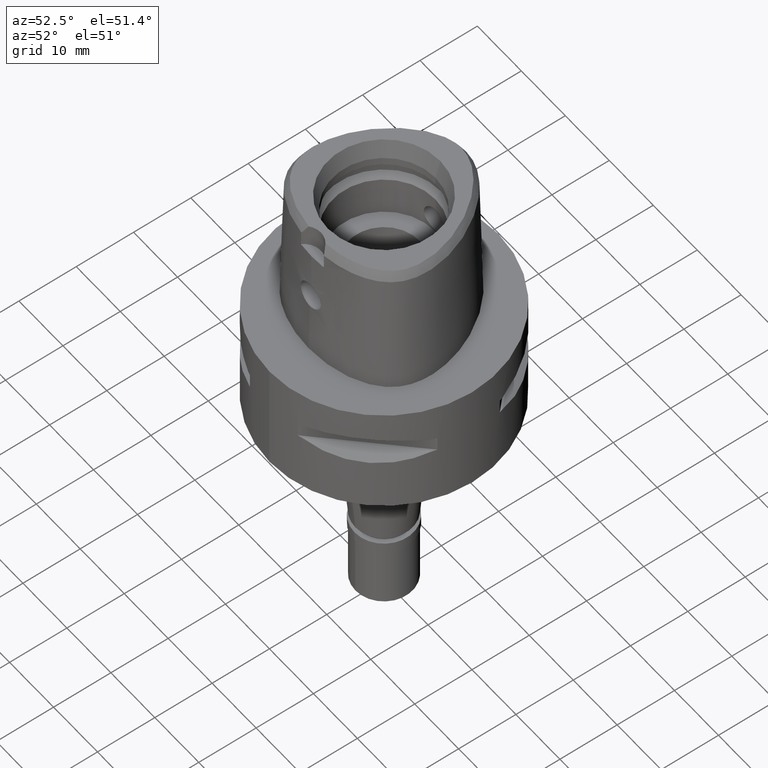
[diagram: clean part render]
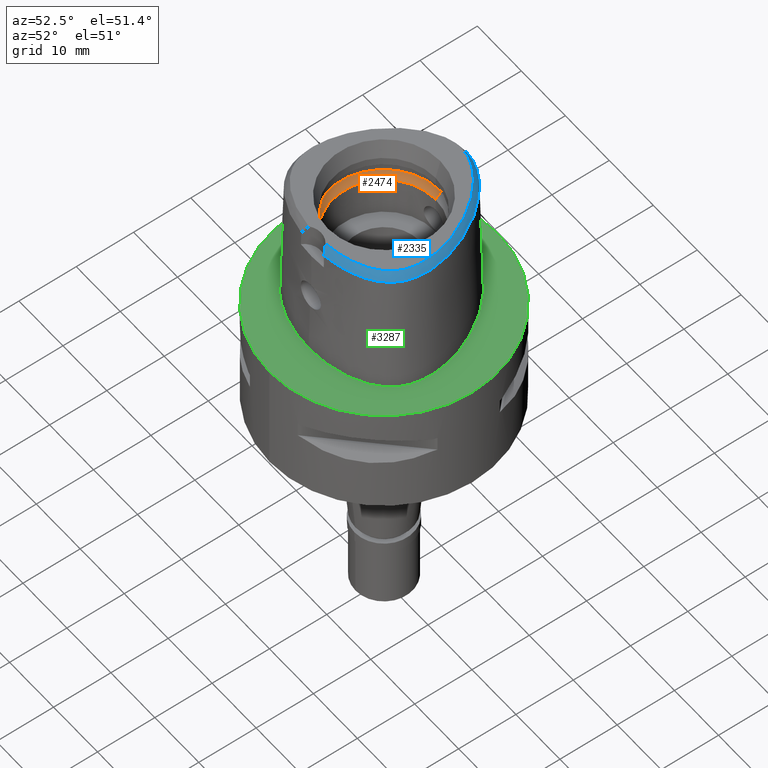
[diagram: same view with three faces highlighted in distinct colors, each labeled with its STEP entity id]
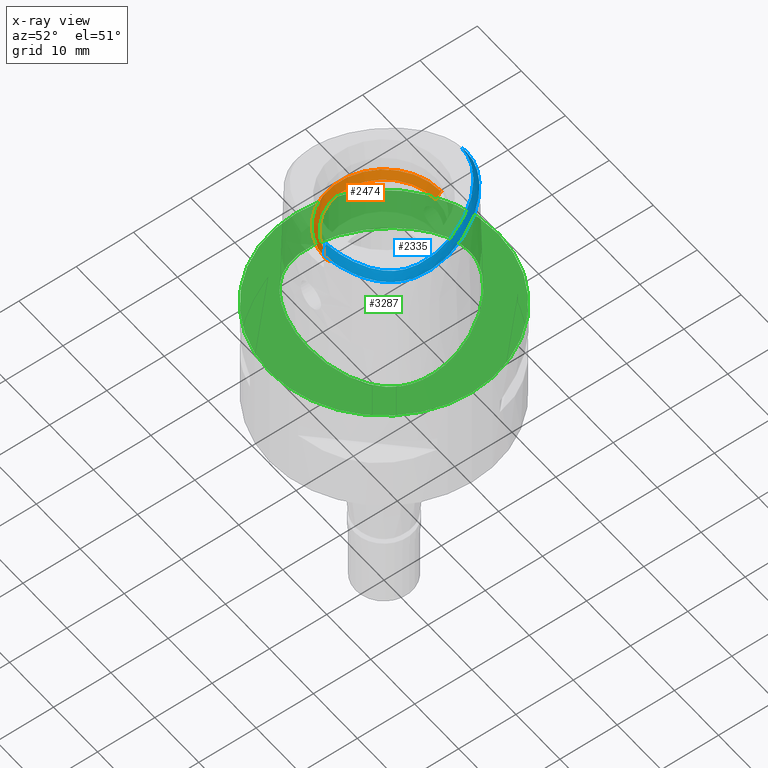
[diagram: x-ray of the same camera — body ghosted, the three highlighted faces saturated]
A machine part, auxiliary view with three faces highlighted in distinct colors.
The next image is the same camera in x-ray (body ghosted, the three faces saturated) — at least one of them is partly hidden behind the body in this view.
Their STEP definitions:

[orange] entity #2474 — the highlighted conical surface has half-angle 45 deg.
#211 = DIRECTION ( 'NONE',  ( 0.0000000000000000000, -1.000000000000000000, 0.0000000000000000000 ) ) ;
#288 = EDGE_CURVE ( 'NONE', #1582, #3533, #3058, .T. ) ;
#471 = AXIS2_PLACEMENT_3D ( 'NONE', #1708, #2751, #3457 ) ;
#545 = EDGE_CURVE ( 'NONE', #1518, #3533, #2227, .T. ) ;
#757 = FACE_OUTER_BOUND ( 'NONE', #1685, .T. ) ;
#832 = CARTESIAN_POINT ( 'NONE',  ( 0.0000000000000000000, 9.000000000000000000, 16.10000000000000142 ) ) ;
#1139 = ORIENTED_EDGE ( 'NONE', *, *, #4169, .F. ) ;
#1180 = CARTESIAN_POINT ( 'NONE',  ( 0.0000000000000000000, 10.00000000000000000, 17.10000000000000142 ) ) ;
#1425 = VECTOR ( 'NONE', #1507, 1000.000000000000114 ) ;
#1435 = CONICAL_SURFACE ( 'NONE', #1510, 9.500000000000000000, 0.7853981633972997312 ) ;
#1507 = DIRECTION ( 'NONE',  ( 0.0000000000000000000, 0.7071067811865474617, 0.7071067811865474617 ) ) ;
#1510 = AXIS2_PLACEMENT_3D ( 'NONE', #2247, #4311, #2149 ) ;
#1518 = VERTEX_POINT ( 'NONE', #4003 ) ;
#1582 = VERTEX_POINT ( 'NONE', #2265 ) ;
#1605 = DIRECTION ( 'NONE',  ( 0.0000000000000000000, -0.7071067811865474617, 0.7071067811865474617 ) ) ;
#1685 = EDGE_LOOP ( 'NONE', ( #3958, #3642, #2494, #1139 ) ) ;
#1691 = EDGE_CURVE ( 'NONE', #1518, #4061, #4401, .T. ) ;
#1708 = CARTESIAN_POINT ( 'NONE',  ( 0.0000000000000000000, 1.427938167806000271E-14, 16.10000000000000142 ) ) ;
#2149 = DIRECTION ( 'NONE',  ( 0.0000000000000000000, 1.000000000000000000, 0.0000000000000000000 ) ) ;
#2227 = LINE ( 'NONE', #832, #1425 ) ;
#2247 = CARTESIAN_POINT ( 'NONE',  ( 0.0000000000000000000, 1.427938167806000271E-14, 16.60000000000000142 ) ) ;
#2263 = LINE ( 'NONE', #4442, #3436 ) ;
#2265 = CARTESIAN_POINT ( 'NONE',  ( 0.0000000000000000000, -10.00000000000000000, 17.10000000000000142 ) ) ;
#2474 = ADVANCED_FACE ( 'NONE', ( #757 ), #1435, .F. ) ;
#2494 = ORIENTED_EDGE ( 'NONE', *, *, #288, .F. ) ;
#2751 = DIRECTION ( 'NONE',  ( 0.0000000000000000000, 0.0000000000000000000, 1.000000000000000000 ) ) ;
#3058 = CIRCLE ( 'NONE', #4319, 10.00000000000000000 ) ;
#3311 = CARTESIAN_POINT ( 'NONE',  ( 0.0000000000000000000, -9.000000000000000000, 16.10000000000000142 ) ) ;
#3436 = VECTOR ( 'NONE', #1605, 1000.000000000000114 ) ;
#3457 = DIRECTION ( 'NONE',  ( 0.0000000000000000000, 1.000000000000000000, 0.0000000000000000000 ) ) ;
#3533 = VERTEX_POINT ( 'NONE', #1180 ) ;
#3642 = ORIENTED_EDGE ( 'NONE', *, *, #545, .T. ) ;
#3749 = DIRECTION ( 'NONE',  ( 0.0000000000000000000, 0.0000000000000000000, -1.000000000000000000 ) ) ;
#3958 = ORIENTED_EDGE ( 'NONE', *, *, #1691, .F. ) ;
#4003 = CARTESIAN_POINT ( 'NONE',  ( 0.0000000000000000000, 9.000000000000000000, 16.10000000000000142 ) ) ;
#4061 = VERTEX_POINT ( 'NONE', #3311 ) ;
#4086 = CARTESIAN_POINT ( 'NONE',  ( 0.0000000000000000000, 1.427938167806000271E-14, 17.10000000000000142 ) ) ;
#4169 = EDGE_CURVE ( 'NONE', #4061, #1582, #2263, .T. ) ;
#4311 = DIRECTION ( 'NONE',  ( 0.0000000000000000000, 0.0000000000000000000, 1.000000000000000000 ) ) ;
#4319 = AXIS2_PLACEMENT_3D ( 'NONE', #4086, #3749, #211 ) ;
#4401 = CIRCLE ( 'NONE', #471, 9.000000000000000000 ) ;
#4442 = CARTESIAN_POINT ( 'NONE',  ( 0.0000000000000000000, -9.000000000000000000, 16.10000000000000142 ) ) ;

[blue] entity #2335 — the highlighted face is a freeform B-spline surface patch.
#7 = CARTESIAN_POINT ( 'NONE',  ( 0.4912642629216428247, 13.55865141013883779, 23.99999999999748823 ) ) ;
#33 = CARTESIAN_POINT ( 'NONE',  ( 10.97862720533128034, 4.421873472737217092, 24.00000000000130740 ) ) ;
#35 = CARTESIAN_POINT ( 'NONE',  ( 11.18054665778999990, -8.943935023454999467, 22.41659784990000048 ) ) ;
#61 = CARTESIAN_POINT ( 'NONE',  ( 12.00226431952999917, -8.020659362752999400, 22.41659848673000255 ) ) ;
#85 = CARTESIAN_POINT ( 'NONE',  ( 10.27499611922000078, -8.911884238705999550, 23.54157307106000019 ) ) ;
#113 = CARTESIAN_POINT ( 'NONE',  ( 9.741346981171998820, -9.328079817789001638, 23.54157336317000215 ) ) ;
#115 = CARTESIAN_POINT ( 'NONE',  ( 2.377474434218886490, -12.13327925685394071, 23.12252361346692808 ) ) ;
#131 = CARTESIAN_POINT ( 'NONE',  ( 7.672855854035000256, -10.51497776867999967, 23.54157298762999773 ) ) ;
#156 = CARTESIAN_POINT ( 'NONE',  ( 7.026538874725999584, 10.42665415244000116, 23.54157395039000278 ) ) ;
#180 = CARTESIAN_POINT ( 'NONE',  ( 7.562961591627000324, 9.421235641438999053, 24.10406066264999936 ) ) ;
#200 = CARTESIAN_POINT ( 'NONE',  ( 12.39088444216999996, 0.1246507426171999805, 24.10406049288999952 ) ) ;
#225 = CARTESIAN_POINT ( 'NONE',  ( 9.038013831349001492, 7.595681643757999701, 24.10406063752000350 ) ) ;
#253 = CARTESIAN_POINT ( 'NONE',  ( 12.12262631311000050, 2.295523041177999879, 23.54157313212000346 ) ) ;
#272 = CARTESIAN_POINT ( 'NONE',  ( 2.786770328296999999, 13.27647681442999961, 23.54157292499999699 ) ) ;
#295 = CARTESIAN_POINT ( 'NONE',  ( 4.618030309433000191, 11.96656169281999915, 24.10406042981999875 ) ) ;
#315 = CARTESIAN_POINT ( 'NONE',  ( 3.643846516945212333, -11.46587366694433463, 24.00000000000306599 ) ) ;
#346 = CARTESIAN_POINT ( 'NONE',  ( -0.2638225176614000245, 14.13956138602999957, 22.97908556446999739 ) ) ;
#347 = CARTESIAN_POINT ( 'NONE',  ( 2.052025771813999810, -12.56520045377999928, 22.41659882620000133 ) ) ;
#359 = CARTESIAN_POINT ( 'NONE',  ( 10.56297693592129505, -8.306035104844957218, 23.99999999999713651 ) ) ;
#379 = CARTESIAN_POINT ( 'NONE',  ( 10.11006658375115208, -8.714727269572218660, 23.99999999999140599 ) ) ;
#385 = CARTESIAN_POINT ( 'NONE',  ( 9.775510958010130480, 6.602848413448878517, 23.99999999999662847 ) ) ;
#389 = CARTESIAN_POINT ( 'NONE',  ( 11.80441419227999944, -7.206122603479999889, 23.54157302401999985 ) ) ;
#412 = CARTESIAN_POINT ( 'NONE',  ( 8.742322191549000365, -10.69119476893999909, 22.41659792359000392 ) ) ;
#434 = CARTESIAN_POINT ( 'NONE',  ( 12.29332161187999972, -6.306309211853000640, 23.54157315862000388 ) ) ;
#455 = CARTESIAN_POINT ( 'NONE',  ( -1.335434154400999961E-10, 13.57127880780999796, 24.00000000000000000 ) ) ;
#457 = CARTESIAN_POINT ( 'NONE',  ( 13.54794267922000017, -4.082681780131999894, 22.41659829744999755 ) ) ;
#481 = CARTESIAN_POINT ( 'NONE',  ( 10.07262836031999953, -8.669973571330999107, 24.10406074171000057 ) ) ;
#501 = CARTESIAN_POINT ( 'NONE',  ( 10.52640597497000030, 7.076075020831000373, 22.41659854405999752 ) ) ;
#522 = CARTESIAN_POINT ( 'NONE',  ( 7.246260273663999385, 10.65281662968000020, 22.97908735865999930 ) ) ;
#548 = CARTESIAN_POINT ( 'NONE',  ( 13.63625698640000117, -2.513130085808999770, 22.41659788731000091 ) ) ;
#570 = CARTESIAN_POINT ( 'NONE',  ( 10.63537791882999883, 5.651476184878999831, 23.54157311549000298 ) ) ;
#592 = CARTESIAN_POINT ( 'NONE',  ( 11.41655104202999915, 3.286844314440000137, 24.10406073351999723 ) ) ;
#618 = CARTESIAN_POINT ( 'NONE',  ( 4.092129824850999853, 12.65456867189999812, 23.54157501778999872 ) ) ;
#619 = CARTESIAN_POINT ( 'NONE',  ( 9.075996545096231216, -10.47368666716384489, 22.52071729251865051 ) ) ;
#641 = CARTESIAN_POINT ( 'NONE',  ( 1.045229799592999997, 13.75348528219999977, 23.54157309293999845 ) ) ;
#642 = CARTESIAN_POINT ( 'NONE',  ( 3.014424016408662421, -12.39773933397950856, 22.52071729251865051 ) ) ;
#662 = CARTESIAN_POINT ( 'NONE',  ( 1.528073886349999855, 13.33935798329999756, 24.10406070347999830 ) ) ;
#663 = CARTESIAN_POINT ( 'NONE',  ( 12.06912915025739608, -7.841969071234741406, 22.52071729251865051 ) ) ;
#688 = CARTESIAN_POINT ( 'NONE',  ( 4.736458210706040894, -12.13940339171678140, 22.52071729251865051 ) ) ;
#694 = CARTESIAN_POINT ( 'NONE',  ( 2.022816959220999689, -12.25140686639999998, 22.97908610734999968 ) ) ;
#707 = CARTESIAN_POINT ( 'NONE',  ( 5.780202704591621554, -10.95235643153220906, 23.99999999999380051 ) ) ;
#709 = CARTESIAN_POINT ( 'NONE',  ( 12.68166859856295581, 2.767886240358740313, 22.52071729251865051 ) ) ;
#711 = CARTESIAN_POINT ( 'NONE',  ( 3.965883677374661520, 12.43068963207104716, 23.99999999999844036 ) ) ;
#713 = CARTESIAN_POINT ( 'NONE',  ( 2.794826451347000251, -12.48814307720000016, 22.41659843781000205 ) ) ;
#731 = CARTESIAN_POINT ( 'NONE',  ( 12.49750095046000098, -5.800599386810000091, 23.54157325149999735 ) ) ;
#758 = CARTESIAN_POINT ( 'NONE',  ( 7.031839853030000143, -11.46248568705000004, 22.41659899705999948 ) ) ;
#783 = CARTESIAN_POINT ( 'NONE',  ( 0.1653041921268542380, 13.57127880781333751, 23.99999999999714007 ) ) ;
#785 = CARTESIAN_POINT ( 'NONE',  ( 12.86916604337999814, -6.563963695084999550, 22.41659803218999869 ) ) ;
#805 = CARTESIAN_POINT ( 'NONE',  ( 10.96116124900999900, -8.717327517533998815, 22.97908547787000089 ) ) ;
#810 = B_SPLINE_CURVE_WITH_KNOTS ( 'NONE', 3,
 ( #455, #783, #7, #3292, #2476, #3941, #2148, #3901, #711, #2125, #1778, #2847, #4267, #1088, #2495, #3569, #385, #3220, #33, #1455, #1107, #4361, #2588, #825, #1176, #4010, #2245, #4281, #2470, #2448, #4570, #1083, #3149, #4217, #3544, #2081, #359, #379, #2490, #4238, #3525, #2106, #1103, #707, #1772, #315, #1039, #3592, #1755 ),
 .UNSPECIFIED., .F., .F.,
 ( 4, 1, 1, 1, 1, 1, 1, 1, 1, 1, 1, 1, 1, 1, 1, 1, 1, 1, 1, 1, 1, 1, 1, 1, 1, 1, 1, 1, 1, 1, 1, 1, 1, 1, 1, 1, 1, 1, 1, 1, 1, 1, 1, 1, 1, 1, 4 ),
 ( 0.0000000000000000000, 0.02199885823280001151, 0.04399771645910000029, 0.06599657468529995796, 0.08799543291160005776, 0.1099942911379000465, 0.1319931493642000353, 0.1539920075905000241, 0.1759908658166000617, 0.1979897240429000504, 0.2199885822692000392, 0.2419874404955000280, 0.2639862987218000168, 0.2859851569481000055, 0.3079840151743000742, 0.3299828734006000630, 0.3519817316269000518, 0.3739805898531999295, 0.3959794480795000293, 0.4179783063057000980, 0.4399771645319999758, 0.4619760227582999645, 0.4839748809845999533, 0.5059737392109000531, 0.5279725974371000108, 0.5499714556633999996, 0.5719703138896999883, 0.5939691721160000881, 0.6159680303423000769, 0.6379668885684999236, 0.6599657467947999123, 0.6819646050210999011, 0.7039634632474000009, 0.7259623214736999897, 0.7479611796998999473, 0.7699600379262000471, 0.7919588961525000359, 0.8139577543788000247, 0.8359566126051000134, 0.8579554708314000022, 0.8799543290575000398, 0.9019531872838499886, 0.9239520455101499774, 0.9459509037364199902, 0.9679497619626999949, 0.9899486201889799997, 1.000000000000000000 ),
 .UNSPECIFIED. ) ;
#825 = CARTESIAN_POINT ( 'NONE',  ( 12.61485888652774179, -0.8159399761860219868, 24.00000000000390088 ) ) ;
#828 = CARTESIAN_POINT ( 'NONE',  ( 10.91270595219000050, -7.856257655645999094, 24.10406072073999795 ) ) ;
#855 = CARTESIAN_POINT ( 'NONE',  ( 9.551017342020999834, 7.962411779638000731, 22.97908642268000179 ) ) ;
#875 = CARTESIAN_POINT ( 'NONE',  ( 9.294515586684999775, 7.779046711698000216, 23.54157353009999909 ) ) ;
#899 = CARTESIAN_POINT ( 'NONE',  ( 13.59738778800999981, -1.633529855540999831, 22.41659775733999993 ) ) ;
#927 = CARTESIAN_POINT ( 'NONE',  ( 8.556714841332999200, 8.748551928115999132, 23.54157302768999926 ) ) ;
#949 = CARTESIAN_POINT ( 'NONE',  ( 12.71965921363999996, 2.498591432615000052, 22.41659794063999911 ) ) ;
#972 = CARTESIAN_POINT ( 'NONE',  ( 3.937226399809999666, 12.37987015034000038, 24.10406029981999865 ) ) ;
#1001 = CARTESIAN_POINT ( 'NONE',  ( 1.742769477308999893, 14.26092123337000039, 22.41659831161999961 ) ) ;
#1005 = CARTESIAN_POINT ( 'NONE',  ( -0.4176289583373000158, 14.44698295257999909, 22.41659762423000046 ) ) ;
#1021 = CARTESIAN_POINT ( 'NONE',  ( 2.367846901265000081, 14.09149926289000021, 22.41659735190000191 ) ) ;
#1022 = CARTESIAN_POINT ( 'NONE',  ( 1.515894610912440932, 14.29262276005998089, 22.52071729251865051 ) ) ;
#1039 = CARTESIAN_POINT ( 'NONE',  ( 2.682152426755615604, -11.60797119916499121, 24.00000000000295231 ) ) ;
#1069 = CARTESIAN_POINT ( 'NONE',  ( 0.05254391964388999831, 14.46360985118000109, 22.41659825342999923 ) ) ;
#1083 = CARTESIAN_POINT ( 'NONE',  ( 12.05866527356503148, -6.201315129638751422, 23.99999999999616307 ) ) ;
#1088 = CARTESIAN_POINT ( 'NONE',  ( 7.606071530366263822, 9.460533301732633404, 23.99999999999536726 ) ) ;
#1090 = CARTESIAN_POINT ( 'NONE',  ( 2.754800141654999646, -12.17547090364000084, 22.97908585694000294 ) ) ;
#1103 = CARTESIAN_POINT ( 'NONE',  ( 6.719766980793653310, -10.63148725728963839, 23.99999999999698019 ) ) ;
#1107 = CARTESIAN_POINT ( 'NONE',  ( 11.87933568352152314, 2.212772766010672854, 23.99999999999156586 ) ) ;
#1110 = CARTESIAN_POINT ( 'NONE',  ( 12.79434690739000047, -5.907243115210000006, 22.97908580224000019 ) ) ;
#1133 = CARTESIAN_POINT ( 'NONE',  ( 10.74177584022999987, -8.490720011612998164, 23.54157310585000218 ) ) ;
#1156 = CARTESIAN_POINT ( 'NONE',  ( 13.43389472321000078, -4.778184365525999233, 22.41659773235999964 ) ) ;
#1176 = CARTESIAN_POINT ( 'NONE',  ( 12.71240944240971160, -1.703055140480455698, 24.00000000000267875 ) ) ;
#1178 = CARTESIAN_POINT ( 'NONE',  ( 9.300228096021999846, -10.00482640098999987, 22.97908592555999974 ) ) ;
#1191 = ORIENTED_EDGE ( 'NONE', *, *, #3324, .F. ) ;
#1204 = CARTESIAN_POINT ( 'NONE',  ( 10.35929544740999830, 5.499182395675000556, 24.10406073163999707 ) ) ;
#1225 = CARTESIAN_POINT ( 'NONE',  ( 12.69024599039000023, -2.524617189646999993, 24.10406073136000060 ) ) ;
#1244 = CARTESIAN_POINT ( 'NONE',  ( 6.467695306246000975, 11.36226204683999974, 22.97908595284000199 ) ) ;
#1268 = CARTESIAN_POINT ( 'NONE',  ( 12.29241747322000045, 3.644082828716000311, 22.41659785447000175 ) ) ;
#1296 = CARTESIAN_POINT ( 'NONE',  ( 12.96862854273999943, -1.682926166651999900, 23.54157307904999996 ) ) ;
#1301 = EDGE_CURVE ( 'NONE', #2741, #3695, #810, .T. ) ;
#1321 = CARTESIAN_POINT ( 'NONE',  ( 1.141913150044000069, 14.37687898132000086, 22.41659780532000212 ) ) ;
#1322 = CARTESIAN_POINT ( 'NONE',  ( -6.443694316511000534E-11, 14.40001989798000182, 22.52071729252999788 ) ) ;
#1345 = CARTESIAN_POINT ( 'NONE',  ( 2.179939846721000052, 13.48933243771999990, 23.54157296165999824 ) ) ;
#1346 = LINE ( 'NONE', #1322, #2618 ) ;
#1352 = CARTESIAN_POINT ( 'NONE',  ( 5.947578976620999214, -11.49964573859000083, 22.97908819445000006 ) ) ;
#1369 = CARTESIAN_POINT ( 'NONE',  ( 1.599639083336000134, 13.64654573331999998, 23.54157323951999814 ) ) ;
#1377 = CARTESIAN_POINT ( 'NONE',  ( 1.677079390104999845, -11.96329518905999834, 23.54157339554999950 ) ) ;
#1389 = B_SPLINE_SURFACE_WITH_KNOTS ( 'NONE', 3, 3, ( 
 ( #3509, #2478, #3133, #2849 ),
 ( #1760, #1377, #4533, #3882 ),
 ( #2781, #4269, #694, #347 ),
 ( #4594, #1743, #1090, #713 ),
 ( #3156, #3817, #4204, #2047 ),
 ( #2433, #1694, #2089, #1414 ),
 ( #2821, #3109, #1352, #2128 ),
 ( #2759, #3550, #2550, #758 ),
 ( #3267, #131, #1477, #2892 ),
 ( #4312, #1525, #3571, #412 ),
 ( #3317, #3672, #1178, #2941 ),
 ( #1826, #113, #4286, #1545 ),
 ( #481, #85, #2150, #3222 ),
 ( #2201, #1133, #805, #35 ),
 ( #828, #1457, #2868, #2177 ),
 ( #3969, #4363, #3990, #61 ),
 ( #2223, #389, #2590, #1802 ),
 ( #3599, #1895, #2963, #4385 ),
 ( #2497, #434, #3923, #785 ),
 ( #3622, #731, #1110, #2921 ),
 ( #3244, #1502, #4012, #2520 ),
 ( #3943, #1851, #4341, #1156 ),
 ( #2248, #2571, #3649, #457 ),
 ( #1874, #3295, #3082, #2340 ),
 ( #1225, #1616, #2289, #548 ),
 ( #3782, #1296, #2683, #899 ),
 ( #4482, #4411, #2270, #1991 ),
 ( #200, #3389, #2707, #3031 ),
 ( #4453, #3692, #3763, #4038 ),
 ( #1568, #253, #2359, #949 ),
 ( #592, #1968, #1595, #1268 ),
 ( #4129, #2017, #2311, #3432 ),
 ( #1204, #570, #2987, #1667 ),
 ( #4106, #2637, #3409, #501 ),
 ( #225, #875, #855, #2620 ),
 ( #4057, #927, #1640, #1916 ),
 ( #180, #3340, #3008, #3056 ),
 ( #3713, #156, #522, #1939 ),
 ( #3366, #4431, #1244, #3741 ),
 ( #2656, #4079, #2382, #2429 ),
 ( #295, #3807, #4149, #3834 ),
 ( #972, #618, #2776, #2041 ),
 ( #3459, #3855, #4527, #3126 ),
 ( #1689, #272, #3478, #2728 ),
 ( #3104, #1345, #2753, #1021 ),
 ( #662, #1369, #4506, #1001 ),
 ( #4174, #641, #2408, #1321 ),
 ( #2062, #1711, #4548, #4199 ),
 ( #1742, #3838, #4593, #1069 ),
 ( #2477, #1393, #346, #4244 ),
 ( #4183, #2110, #3172, #1005 ) ),
 .UNSPECIFIED., .F., .F., .F.,
 ( 4, 1, 1, 1, 1, 1, 1, 1, 1, 1, 1, 1, 1, 1, 1, 1, 1, 1, 1, 1, 1, 1, 1, 1, 1, 1, 1, 1, 1, 1, 1, 1, 1, 1, 1, 1, 1, 1, 1, 1, 1, 1, 1, 1, 1, 1, 1, 1, 4 ),
 ( 4, 4 ),
 ( -0.006801674744685000037, 0.0000000000000000000, 0.01005137981102000033, 0.03205023803730000509, 0.05404909626358000291, 0.07604795448985000872, 0.09804681271614999749, 0.1200456709425000018, 0.1420445291685999978, 0.1640433873949000143, 0.1860422456211999753, 0.2080411038474999919, 0.2300399620737999806, 0.2520388203000999972, 0.2740376785263000103, 0.2960365367525999991, 0.3180353949789000434, 0.3400342532052000322, 0.3620331114315000209, 0.3840319696576999786, 0.4060308278839999674, 0.4280296861103000117, 0.4500285443366000004, 0.4720274025628999892, 0.4940262607891000024, 0.5160251190154000467, 0.5380239772417000355, 0.5600228354680000242, 0.5820216936942999020, 0.6040205519204999707, 0.6260194101468000705, 0.6480182683730999482, 0.6700171265993999370, 0.6920159848256999258, 0.7140148430518999945, 0.7360137012781999832, 0.7580125595044999720, 0.7800114177307999608, 0.8020102759570999496, 0.8240091341833999383, 0.8460079924094999759, 0.8680068506357999647, 0.8900057088620999535, 0.9120045670883999422, 0.9340034253147000420, 0.9560022835408999997, 0.9780011417671999885, 1.000000000000000000, 1.016043917558999921 ),
 ( -0.04840899919661000028, 1.048446601441999970 ),
 .UNSPECIFIED. ) ;
#1393 = CARTESIAN_POINT ( 'NONE',  ( -0.2519925542796999651, 13.82460763705999973, 23.54157314473000184 ) ) ;
#1414 = CARTESIAN_POINT ( 'NONE',  ( 4.958591931095999605, -12.09701735874999962, 22.41660066887000013 ) ) ;
#1437 = FACE_OUTER_BOUND ( 'NONE', #2950, .T. ) ;
#1455 = CARTESIAN_POINT ( 'NONE',  ( 11.47056307656498220, 3.308874133465863121, 23.99999999999694822 ) ) ;
#1457 = CARTESIAN_POINT ( 'NONE',  ( 11.14827478706000008, -8.066009265284000307, 23.54157316347999895 ) ) ;
#1477 = CARTESIAN_POINT ( 'NONE',  ( 7.802412797783000009, -10.80247927355000037, 22.97908521459999776 ) ) ;
#1502 = CARTESIAN_POINT ( 'NONE',  ( 12.67235027332000108, -5.252067571726001027, 23.54157310619000043 ) ) ;
#1525 = CARTESIAN_POINT ( 'NONE',  ( 8.446032776251000129, -10.13440904839000112, 23.54157312718000128 ) ) ;
#1545 = CARTESIAN_POINT ( 'NONE',  ( 10.11075143609000015, -9.839353945653000366, 22.41659873867999764 ) ) ;
#1568 = CARTESIAN_POINT ( 'NONE',  ( 11.82410986284999943, 2.193988845460000281, 24.10406072784999765 ) ) ;
#1595 = CARTESIAN_POINT ( 'NONE',  ( 12.00046199616000031, 3.525003323957000223, 22.97908548082000024 ) ) ;
#1601 = ORIENTED_EDGE ( 'NONE', *, *, #3845, .F. ) ;
#1616 = CARTESIAN_POINT ( 'NONE',  ( 13.00558298905999877, -2.520788155034000333, 23.54157311668000219 ) ) ;
#1640 = CARTESIAN_POINT ( 'NONE',  ( 8.801998057950999765, 8.946680924950999980, 22.97908530381000247 ) ) ;
#1667 = CARTESIAN_POINT ( 'NONE',  ( 11.18754286166999989, 5.956063763288000246, 22.41659788319999791 ) ) ;
#1689 = CARTESIAN_POINT ( 'NONE',  ( 2.671385639136000467, 12.98295128228000017, 24.10406077486999976 ) ) ;
#1690 = CARTESIAN_POINT ( 'NONE',  ( 13.19588016803218267, -5.576003003766894395, 22.52071729251865051 ) ) ;
#1694 = CARTESIAN_POINT ( 'NONE',  ( 4.811320966112999642, -11.48382304076000082, 23.54157392200000132 ) ) ;
#1711 = CARTESIAN_POINT ( 'NONE',  ( 0.5112049559979999769, 13.81495694701999888, 23.54157305399999700 ) ) ;
#1713 = CARTESIAN_POINT ( 'NONE',  ( -6.443694316511000534E-11, 14.40001989798000182, 22.52071729252999788 ) ) ;
#1742 = CARTESIAN_POINT ( 'NONE',  ( 0.04604070563847000030, 13.51754230655999933, 24.10406070730000039 ) ) ;
#1743 = CARTESIAN_POINT ( 'NONE',  ( 2.714773831962999928, -11.86279873008999886, 23.54157327605999583 ) ) ;
#1755 = CARTESIAN_POINT ( 'NONE',  ( 1.908900751366000126, -11.68567549349000068, 24.00000000000000000 ) ) ;
#1760 = CARTESIAN_POINT ( 'NONE',  ( 1.652558032866000115, -11.64912163110999899, 24.10406066806000069 ) ) ;
#1772 = CARTESIAN_POINT ( 'NONE',  ( 4.751308116302947582, -11.23394664105668816, 23.99999999999891642 ) ) ;
#1775 = CARTESIAN_POINT ( 'NONE',  ( 3.539803247036371836, 13.67924950644466975, 22.52071729251865051 ) ) ;
#1778 = CARTESIAN_POINT ( 'NONE',  ( 5.360995407853614836, 11.51670950506745505, 23.99999999999471356 ) ) ;
#1802 = CARTESIAN_POINT ( 'NONE',  ( 12.33365678876000082, -7.549498518059999164, 22.41659756725999841 ) ) ;
#1804 = CARTESIAN_POINT ( 'NONE',  ( 2.568703243657000090, -12.45023755174000080, 22.52071758139999957 ) ) ;
#1826 = CARTESIAN_POINT ( 'NONE',  ( 9.556644753712999929, -9.072442753856000408, 24.10406067541000397 ) ) ;
#1851 = CARTESIAN_POINT ( 'NONE',  ( 12.81532396518999839, -4.654594428562999653, 23.54157307180999936 ) ) ;
#1874 = CARTESIAN_POINT ( 'NONE',  ( 12.67282196915999926, -3.275738563373999934, 24.10406066336000208 ) ) ;
#1876 = CARTESIAN_POINT ( 'NONE',  ( 2.145199990280436175, -11.88057979210558734, 23.61561775300026511 ) ) ;
#1895 = CARTESIAN_POINT ( 'NONE',  ( 12.06307979762000038, -6.771138580927999584, 23.54157315874000034 ) ) ;
#1916 = CARTESIAN_POINT ( 'NONE',  ( 9.047281274570000420, 9.144809921784998963, 22.41659757993999946 ) ) ;
#1939 = CARTESIAN_POINT ( 'NONE',  ( 7.465981672600999985, 10.87897910693000014, 22.41660076694000026 ) ) ;
#1967 = CARTESIAN_POINT ( 'NONE',  ( -1.335434154400999961E-10, 13.57127880780999796, 24.00000000000000000 ) ) ;
#1968 = CARTESIAN_POINT ( 'NONE',  ( 11.70850651910000018, 3.405923819199000224, 23.54157310717000229 ) ) ;
#1991 = CARTESIAN_POINT ( 'NONE',  ( 13.49346630462999919, -0.6893942371843999606, 22.41659782917999877 ) ) ;
#2017 = CARTESIAN_POINT ( 'NONE',  ( 11.21047459030999960, 4.532692208543999790, 23.54157346468999989 ) ) ;
#2041 = CARTESIAN_POINT ( 'NONE',  ( 4.401936674933000226, 13.20396571501999894, 22.41660445373999977 ) ) ;
#2047 = CARTESIAN_POINT ( 'NONE',  ( 3.798997256353000118, -12.33980382929000008, 22.41659714991000030 ) ) ;
#2062 = CARTESIAN_POINT ( 'NONE',  ( 0.4867378200478999495, 13.50047126715000090, 24.10406074559000089 ) ) ;
#2081 = CARTESIAN_POINT ( 'NONE',  ( 10.95628640552514810, -7.895061898324560623, 23.99999999999877076 ) ) ;
#2089 = CARTESIAN_POINT ( 'NONE',  ( 4.884956448605001000, -11.79042019974999889, 22.97908729543000206 ) ) ;
#2106 = CARTESIAN_POINT ( 'NONE',  ( 7.567267065261193082, -10.28066430934958220, 24.00000000000100897 ) ) ;
#2110 = CARTESIAN_POINT ( 'NONE',  ( -0.3823255288272000008, 13.81776418963000097, 23.54157304051000210 ) ) ;
#2124 = CARTESIAN_POINT ( 'NONE',  ( 12.82590900890471630, -6.531187914406921813, 22.52071729251865051 ) ) ;
#2125 = CARTESIAN_POINT ( 'NONE',  ( 4.650015056714344119, 12.01535282295758478, 23.99999999999806022 ) ) ;
#2128 = CARTESIAN_POINT ( 'NONE',  ( 6.039797355529000100, -11.80118270124999924, 22.41660206321000004 ) ) ;
#2131 = B_SPLINE_CURVE_WITH_KNOTS ( 'NONE', 3,
 ( #1713, #4573, #1022, #1775, #4591, #2475, #2430, #709, #2754, #3192, #2451, #1690, #2124, #3835, #663, #3105, #3878, #619, #3810, #688, #642, #3856 ),
 .UNSPECIFIED., .F., .F.,
 ( 4, 1, 1, 1, 1, 1, 1, 1, 1, 1, 1, 1, 1, 1, 1, 1, 1, 1, 1, 4 ),
 ( 0.0000000000000000000, 0.04407253041122578124, 0.08814506081991302366, 0.1762901216374991031, 0.2644351824549793784, 0.3525802432725654856, 0.4407253040901515928, 0.5288703649076318403, 0.5729428953164248384, 0.6170154257251121432, 0.6610879561339050303, 0.6831242213381958361, 0.7051604865426981394, 0.7271967517469889453, 0.7492330169513854443, 0.7933055473601783314, 0.8373780777689714405, 0.8814506081776586344, 0.9695956689952024421, 1.000000000000000000 ),
 .UNSPECIFIED. ) ;
#2148 = CARTESIAN_POINT ( 'NONE',  ( 2.692731913843132485, 13.03725377846363642, 23.99999999999542766 ) ) ;
#2150 = CARTESIAN_POINT ( 'NONE',  ( 10.47736387812000025, -9.153794906079999905, 22.97908540040999981 ) ) ;
#2177 = CARTESIAN_POINT ( 'NONE',  ( 11.61941245679999923, -8.485512484560000956, 22.41659804897000186 ) ) ;
#2201 = CARTESIAN_POINT ( 'NONE',  ( 10.52239043145000075, -8.264112505692001065, 24.10406073381999903 ) ) ;
#2223 = CARTESIAN_POINT ( 'NONE',  ( 11.53979289403999786, -7.034434646191000340, 24.10406075239999879 ) ) ;
#2245 = CARTESIAN_POINT ( 'NONE',  ( 12.73107502715380512, -3.278999632795463803, 23.99999999999855760 ) ) ;
#2248 = CARTESIAN_POINT ( 'NONE',  ( 12.60924854383000060, -3.964083063376000027, 24.10406070440999926 ) ) ;
#2270 = CARTESIAN_POINT ( 'NONE',  ( 13.18134988966999899, -0.7343483333732999663, 22.97908546452000067 ) ) ;
#2289 = CARTESIAN_POINT ( 'NONE',  ( 13.32091998773000086, -2.516959120422000318, 22.97908550198999933 ) ) ;
#2311 = CARTESIAN_POINT ( 'NONE',  ( 11.49495023363000179, 4.668666272532999706, 22.97908627700999773 ) ) ;
#2335 = ADVANCED_FACE ( 'NONE', ( #1437 ), #1389, .F. ) ;
#2340 = CARTESIAN_POINT ( 'NONE',  ( 13.61746140831999874, -3.328620504606000452, 22.41659892206000038 ) ) ;
#2356 = VERTEX_POINT ( 'NONE', #2432 ) ;
#2359 = CARTESIAN_POINT ( 'NONE',  ( 12.42114276336999978, 2.397057236897000010, 22.97908553637999773 ) ) ;
#2382 = CARTESIAN_POINT ( 'NONE',  ( 5.705266041505000274, 11.97393456996999994, 22.97908512338999998 ) ) ;
#2408 = CARTESIAN_POINT ( 'NONE',  ( 1.093571474819000189, 14.06518213176000032, 22.97908544913000028 ) ) ;
#2409 = DIRECTION ( 'NONE',  ( -4.075614211846980818E-11, -0.4887572544032980359, 0.8724198222576960982 ) ) ;
#2429 = CARTESIAN_POINT ( 'NONE',  ( 5.894946928500999661, 12.22584933523999950, 22.41659730010999851 ) ) ;
#2430 = CARTESIAN_POINT ( 'NONE',  ( 11.01301037807105310, 6.358384389067611053, 22.52071729251865051 ) ) ;
#2432 = CARTESIAN_POINT ( 'NONE',  ( -6.443694316511000534E-11, 14.40001989798000182, 22.52071729252999788 ) ) ;
#2433 = CARTESIAN_POINT ( 'NONE',  ( 4.737685483622000149, -11.17722588176000009, 24.10406054855999969 ) ) ;
#2448 = CARTESIAN_POINT ( 'NONE',  ( 12.42462515087718700, -5.183426978152518849, 24.00000000000309797 ) ) ;
#2451 = CARTESIAN_POINT ( 'NONE',  ( 13.49620531830357351, -4.288887307216678657, 22.52071729251865051 ) ) ;
#2470 = CARTESIAN_POINT ( 'NONE',  ( 12.56325666867646618, -4.604231586669211396, 23.99999999999161204 ) ) ;
#2475 = CARTESIAN_POINT ( 'NONE',  ( 8.737913805848235071, 9.598635895952680741, 22.52071729251865051 ) ) ;
#2476 = CARTESIAN_POINT ( 'NONE',  ( 1.541313514288857434, 13.39618800248425856, 23.99999999999936051 ) ) ;
#2477 = CARTESIAN_POINT ( 'NONE',  ( -0.2401625908981000201, 13.50965388808999990, 24.10406072499999652 ) ) ;
#2478 = CARTESIAN_POINT ( 'NONE',  ( 1.548849762071000002, -11.97253064566999825, 23.54157339090999912 ) ) ;
#2490 = CARTESIAN_POINT ( 'NONE',  ( 9.590814837413244476, -9.119735848214645557, 23.99999999999759126 ) ) ;
#2495 = CARTESIAN_POINT ( 'NONE',  ( 8.356809247699041876, 8.587076979792412246, 23.99999999999554134 ) ) ;
#2497 = CARTESIAN_POINT ( 'NONE',  ( 12.00539939611999962, -6.177481970236999409, 24.10406072183999626 ) ) ;
#2520 = CARTESIAN_POINT ( 'NONE',  ( 13.28026537729000012, -5.420510938180999716, 22.41659785106999792 ) ) ;
#2550 = CARTESIAN_POINT ( 'NONE',  ( 6.920979115820999894, -11.16728188453999948, 22.97908621750999814 ) ) ;
#2571 = CARTESIAN_POINT ( 'NONE',  ( 12.92214658895999868, -4.003615968961000249, 23.54157323542999691 ) ) ;
#2588 = CARTESIAN_POINT ( 'NONE',  ( 12.44798655948878441, 0.1365840453714515512, 23.99999999999950617 ) ) ;
#2590 = CARTESIAN_POINT ( 'NONE',  ( 12.06903549052000102, -7.377810560770000414, 22.97908529563999736 ) ) ;
#2618 = VECTOR ( 'NONE', #2409, 999.9999999999998863 ) ;
#2620 = CARTESIAN_POINT ( 'NONE',  ( 9.807519097355999804, 8.145776847579000446, 22.41659931525000005 ) ) ;
#2637 = CARTESIAN_POINT ( 'NONE',  ( 9.992910227320999539, 6.739857071570000357, 23.54157330681999838 ) ) ;
#2656 = CARTESIAN_POINT ( 'NONE',  ( 5.325904267512999724, 11.47010503941999993, 24.10406076994999935 ) ) ;
#2683 = CARTESIAN_POINT ( 'NONE',  ( 13.28300816538000007, -1.658228011096000154, 22.97908541820000394 ) ) ;
#2684 = CARTESIAN_POINT ( 'NONE',  ( 1.908900751366000126, -11.68567549349000068, 24.00000000000000000 ) ) ;
#2707 = CARTESIAN_POINT ( 'NONE',  ( 13.00820152888999992, 0.2536587730913999472, 22.97908784160999929 ) ) ;
#2728 = CARTESIAN_POINT ( 'NONE',  ( 3.017539706621000128, 13.86352787871999936, 22.41659722524000031 ) ) ;
#2741 = VERTEX_POINT ( 'NONE', #1967 ) ;
#2748 = VERTEX_POINT ( 'NONE', #4078 ) ;
#2753 = CARTESIAN_POINT ( 'NONE',  ( 2.273893373993000289, 13.79041585029999872, 22.97908515678000185 ) ) ;
#2754 = CARTESIAN_POINT ( 'NONE',  ( 13.44334616192400134, -0.2854647381888743007, 22.52071729251865051 ) ) ;
#2759 = CARTESIAN_POINT ( 'NONE',  ( 6.699257641401000107, -10.57687427952999926, 24.10406065843000079 ) ) ;
#2776 = CARTESIAN_POINT ( 'NONE',  ( 4.247033249892000484, 12.92926719345999942, 22.97908973577000324 ) ) ;
#2781 = CARTESIAN_POINT ( 'NONE',  ( 1.964399334035000111, -11.62381969161999962, 24.10406066966000083 ) ) ;
#2791 = B_SPLINE_CURVE_WITH_KNOTS ( 'NONE', 3,
 ( #1804, #115, #1876, #2923 ),
 .UNSPECIFIED., .F., .F.,
 ( 4, 4 ),
 ( 0.0000000000000000000, 1.000000000000000000 ),
 .UNSPECIFIED. ) ;
#2821 = CARTESIAN_POINT ( 'NONE',  ( 5.763142218807000283, -10.89657181325999957, 24.10406045691999921 ) ) ;
#2847 = CARTESIAN_POINT ( 'NONE',  ( 6.095079845025662024, 10.92785127077786811, 23.99999999999014477 ) ) ;
#2849 = CARTESIAN_POINT ( 'NONE',  ( 1.594110105676000089, -12.60115006307000129, 22.41659883447999846 ) ) ;
#2868 = CARTESIAN_POINT ( 'NONE',  ( 11.38384362192999966, -8.275760874921999743, 22.97908560623000085 ) ) ;
#2892 = CARTESIAN_POINT ( 'NONE',  ( 7.931969741530998874, -11.08998077843000019, 22.41659744156999778 ) ) ;
#2921 = CARTESIAN_POINT ( 'NONE',  ( 13.09119286431999818, -6.013886843609999922, 22.41659835297999948 ) ) ;
#2923 = CARTESIAN_POINT ( 'NONE',  ( 1.908900751366000126, -11.68567549349000068, 24.00000000000000000 ) ) ;
#2941 = CARTESIAN_POINT ( 'NONE',  ( 9.466817987414998470, -10.27260465930999978, 22.41659854423999931 ) ) ;
#2950 = EDGE_LOOP ( 'NONE', ( #1601, #4016, #4583, #1191 ) ) ;
#2963 = CARTESIAN_POINT ( 'NONE',  ( 12.34026210329000151, -6.921712924709999548, 22.97908559567999731 ) ) ;
#2987 = CARTESIAN_POINT ( 'NONE',  ( 10.91146039025000114, 5.803769974082999994, 22.97908549934000177 ) ) ;
#3008 = CARTESIAN_POINT ( 'NONE',  ( 8.029012642634999253, 9.846073078409999013, 22.97908617610000093 ) ) ;
#3031 = CARTESIAN_POINT ( 'NONE',  ( 13.31686007225999901, 0.3181627883284999792, 22.41660151596000006 ) ) ;
#3056 = CARTESIAN_POINT ( 'NONE',  ( 8.262038168140001915, 10.05849179690000028, 22.41659893282000127 ) ) ;
#3082 = CARTESIAN_POINT ( 'NONE',  ( 13.30258159526999862, -3.310993190862000279, 22.97908616916000213 ) ) ;
#3104 = CARTESIAN_POINT ( 'NONE',  ( 2.085986319449000259, 13.18824902513000197, 24.10406076654999907 ) ) ;
#3105 = CARTESIAN_POINT ( 'NONE',  ( 11.42690036410428256, -8.639965949823599445, 22.52071729251865051 ) ) ;
#3109 = CARTESIAN_POINT ( 'NONE',  ( 5.855360597713999304, -11.19810877591999976, 23.54157432567999919 ) ) ;
#3126 = CARTESIAN_POINT ( 'NONE',  ( 3.694902236874999968, 13.57025834551999921, 22.41660172874999901 ) ) ;
#3133 = CARTESIAN_POINT ( 'NONE',  ( 1.571479933872999890, -12.28684035436999977, 22.97908611268999834 ) ) ;
#3149 = CARTESIAN_POINT ( 'NONE',  ( 11.83717647605751999, -6.648420630656107555, 23.99999999999391420 ) ) ;
#3156 = CARTESIAN_POINT ( 'NONE',  ( 3.633650054981999666, -11.40843922806999977, 24.10406077983000017 ) ) ;
#3172 = CARTESIAN_POINT ( 'NONE',  ( -0.3999772435821999927, 14.13237357110999959, 22.97908533236999773 ) ) ;
#3192 = CARTESIAN_POINT ( 'NONE',  ( 13.60847656765557012, -2.623199557614385835, 22.52071729251865051 ) ) ;
#3220 = CARTESIAN_POINT ( 'NONE',  ( 10.41037096115107374, 5.527356888185015471, 24.00000000000396128 ) ) ;
#3222 = CARTESIAN_POINT ( 'NONE',  ( 10.67973163701999972, -9.395705573455000348, 22.41659772975999942 ) ) ;
#3244 = CARTESIAN_POINT ( 'NONE',  ( 12.36839272133000023, -5.167845888499000395, 24.10406073374999991 ) ) ;
#3267 = CARTESIAN_POINT ( 'NONE',  ( 7.543298910286999615, -10.22747626380999897, 24.10406076066000125 ) ) ;
#3292 = CARTESIAN_POINT ( 'NONE',  ( 1.005831379202744902, 13.49945263942889184, 23.99999999999683453 ) ) ;
#3295 = CARTESIAN_POINT ( 'NONE',  ( 12.98770178222000027, -3.293365877118000107, 23.54157341626000033 ) ) ;
#3317 = CARTESIAN_POINT ( 'NONE',  ( 8.967048313236999135, -9.469269884356000588, 24.10406068818000236 ) ) ;
#3324 = EDGE_CURVE ( 'NONE', #2748, #3695, #2791, .T. ) ;
#3340 = CARTESIAN_POINT ( 'NONE',  ( 7.795987117131000232, 9.633654359924999966, 23.54157341936999970 ) ) ;
#3366 = CARTESIAN_POINT ( 'NONE',  ( 6.057099546491000019, 10.88357224137999957, 24.10406068540000035 ) ) ;
#3389 = CARTESIAN_POINT ( 'NONE',  ( 12.69954298552999994, 0.1891547578542999708, 23.54157416725000118 ) ) ;
#3409 = CARTESIAN_POINT ( 'NONE',  ( 10.25965810113999943, 6.907966046200999521, 22.97908592544000328 ) ) ;
#3432 = CARTESIAN_POINT ( 'NONE',  ( 11.77942587694000132, 4.804640336522000510, 22.41659908932999912 ) ) ;
#3459 = CARTESIAN_POINT ( 'NONE',  ( 3.287715556694000174, 12.71623181080000187, 24.10406047889999925 ) ) ;
#3478 = CARTESIAN_POINT ( 'NONE',  ( 2.902155017459000064, 13.57000234656999993, 22.97908507512000043 ) ) ;
#3509 = CARTESIAN_POINT ( 'NONE',  ( 1.526219590269000115, -11.65822093696999850, 24.10406066912000256 ) ) ;
#3525 = CARTESIAN_POINT ( 'NONE',  ( 8.325294977168299582, -9.907519125942705784, 23.99999999999872458 ) ) ;
#3544 = CARTESIAN_POINT ( 'NONE',  ( 11.29648905055288211, -7.481873590177649191, 23.99999999999826628 ) ) ;
#3550 = CARTESIAN_POINT ( 'NONE',  ( 6.810118378610999557, -10.87207808203999981, 23.54157343797000124 ) ) ;
#3569 = CARTESIAN_POINT ( 'NONE',  ( 9.085466894420660466, 7.629604351704768028, 23.99999999999948130 ) ) ;
#3571 = CARTESIAN_POINT ( 'NONE',  ( 8.594177483899999359, -10.41280190866999966, 22.97908552538000038 ) ) ;
#3592 = CARTESIAN_POINT ( 'NONE',  ( 2.094511630442078332, -11.66893426578089077, 23.99999999999982592 ) ) ;
#3599 = CARTESIAN_POINT ( 'NONE',  ( 11.78589749196000014, -6.620564237146999709, 24.10406072181000070 ) ) ;
#3622 = CARTESIAN_POINT ( 'NONE',  ( 12.20065499352999971, -5.693955658411000265, 24.10406070075999807 ) ) ;
#3649 = CARTESIAN_POINT ( 'NONE',  ( 13.23504463408999854, -4.043148874546999672, 22.97908576643999723 ) ) ;
#3672 = CARTESIAN_POINT ( 'NONE',  ( 9.133638204629999535, -9.737048142673000228, 23.54157330687000282 ) ) ;
#3692 = CARTESIAN_POINT ( 'NONE',  ( 12.45218743903000203, 1.218465018615000117, 23.54157425623999700 ) ) ;
#3695 = VERTEX_POINT ( 'NONE', #2684 ) ;
#3713 = CARTESIAN_POINT ( 'NONE',  ( 6.806817475788999872, 10.20049167518999944, 24.10406054210999827 ) ) ;
#3741 = CARTESIAN_POINT ( 'NONE',  ( 6.672993186123999720, 11.60160694956999983, 22.41659858655999926 ) ) ;
#3763 = CARTESIAN_POINT ( 'NONE',  ( 12.75628693085999821, 1.301825064528999931, 22.97908803977999881 ) ) ;
#3782 = CARTESIAN_POINT ( 'NONE',  ( 12.65424892010999969, -1.707624322207000001, 24.10406073990999687 ) ) ;
#3787 = EDGE_CURVE ( 'NONE', #2356, #2741, #1346, .T. ) ;
#3807 = CARTESIAN_POINT ( 'NONE',  ( 4.790919966929999774, 12.23029620678000029, 23.54157444509000285 ) ) ;
#3810 = CARTESIAN_POINT ( 'NONE',  ( 6.968888527418845236, -11.49954675152086914, 22.52071729251865051 ) ) ;
#3817 = CARTESIAN_POINT ( 'NONE',  ( 3.688765788772000231, -11.71889409513999958, 23.54157290318999785 ) ) ;
#3834 = CARTESIAN_POINT ( 'NONE',  ( 5.136699281924000715, 12.75776523470000079, 22.41660247561999952 ) ) ;
#3835 = CARTESIAN_POINT ( 'NONE',  ( 12.48241502959946914, -7.206725676734317076, 22.52071729251865051 ) ) ;
#3838 = CARTESIAN_POINT ( 'NONE',  ( 0.04820844364027999929, 13.83289815476000051, 23.54157322268000030 ) ) ;
#3845 = EDGE_CURVE ( 'NONE', #2356, #2748, #2131, .T. ) ;
#3855 = CARTESIAN_POINT ( 'NONE',  ( 3.423444450087999691, 13.00090732237999980, 23.54157422884999562 ) ) ;
#3856 = CARTESIAN_POINT ( 'NONE',  ( 2.568703243657000090, -12.45023755174000080, 22.52071758139999957 ) ) ;
#3878 = CARTESIAN_POINT ( 'NONE',  ( 10.46238780067472618, -9.543612998139279213, 22.52071729251865051 ) ) ;
#3882 = CARTESIAN_POINT ( 'NONE',  ( 1.726122104582000105, -12.59164230496000059, 22.41659885051999979 ) ) ;
#3901 = CARTESIAN_POINT ( 'NONE',  ( 3.312825528087499638, 12.76889704495498634, 23.99999999999372946 ) ) ;
#3923 = CARTESIAN_POINT ( 'NONE',  ( 12.58124382763000249, -6.435136453469000095, 22.97908559540999818 ) ) ;
#3941 = CARTESIAN_POINT ( 'NONE',  ( 2.103367809293398949, 13.24394973621761551, 23.99999999999699440 ) ) ;
#3943 = CARTESIAN_POINT ( 'NONE',  ( 12.50603858617999897, -4.592799460082000351, 24.10406074153999967 ) ) ;
#3969 = CARTESIAN_POINT ( 'NONE',  ( 11.25010570290000089, -7.446464744191000129, 24.10406069197000178 ) ) ;
#3990 = CARTESIAN_POINT ( 'NONE',  ( 11.75154478064999886, -7.829261156565999968, 22.97908588848000022 ) ) ;
#4010 = CARTESIAN_POINT ( 'NONE',  ( 12.74858362814656942, -2.523908814685770885, 23.99999999999580069 ) ) ;
#4012 = CARTESIAN_POINT ( 'NONE',  ( 12.97630782529999927, -5.336289254953999972, 22.97908547863000095 ) ) ;
#4016 = ORIENTED_EDGE ( 'NONE', *, *, #3787, .T. ) ;
#4038 = CARTESIAN_POINT ( 'NONE',  ( 13.06038642268999972, 1.385185110442999967, 22.41660182332000062 ) ) ;
#4057 = CARTESIAN_POINT ( 'NONE',  ( 8.311431624714000321, 8.550422931282001926, 24.10406075155999872 ) ) ;
#4078 = CARTESIAN_POINT ( 'NONE',  ( 2.568703243657000090, -12.45023755174000080, 22.52071758139999957 ) ) ;
#4079 = CARTESIAN_POINT ( 'NONE',  ( 5.515585154508999999, 11.72201980469000127, 23.54157294666999789 ) ) ;
#4106 = CARTESIAN_POINT ( 'NONE',  ( 9.726162353497999291, 6.571748096940000394, 24.10406068820000058 ) ) ;
#4129 = CARTESIAN_POINT ( 'NONE',  ( 10.92599894699000096, 4.396718144555999963, 24.10406065237000206 ) ) ;
#4149 = CARTESIAN_POINT ( 'NONE',  ( 4.963809624427000244, 12.49403072073999965, 22.97908846034999897 ) ) ;
#4174 = CARTESIAN_POINT ( 'NONE',  ( 0.9968881243683999083, 13.44178843263999923, 24.10406073674999661 ) ) ;
#4183 = CARTESIAN_POINT ( 'NONE',  ( -0.3646738140720999777, 13.50315480816000147, 24.10406074866000026 ) ) ;
#4199 = CARTESIAN_POINT ( 'NONE',  ( 0.5601392278982000317, 14.44392830676000017, 22.41659767081999988 ) ) ;
#4204 = CARTESIAN_POINT ( 'NONE',  ( 3.743881522563000441, -12.02934896222000027, 22.97908502654999907 ) ) ;
#4217 = CARTESIAN_POINT ( 'NONE',  ( 11.58874808009336022, -7.066197077817287564, 24.00000000000130385 ) ) ;
#4238 = CARTESIAN_POINT ( 'NONE',  ( 8.997867597935520934, -9.518809110956969022, 23.99999999998957634 ) ) ;
#4244 = CARTESIAN_POINT ( 'NONE',  ( -0.2756524810429999972, 14.45451513499999940, 22.41659798421000005 ) ) ;
#4267 = CARTESIAN_POINT ( 'NONE',  ( 6.847466138751543419, 10.24233194362520294, 23.99999999999435119 ) ) ;
#4269 = CARTESIAN_POINT ( 'NONE',  ( 1.993608146627999789, -11.93761327900999802, 23.54157338851000247 ) ) ;
#4281 = CARTESIAN_POINT ( 'NONE',  ( 12.66713497291545742, -3.971396687642144041, 24.00000000000043343 ) ) ;
#4286 = CARTESIAN_POINT ( 'NONE',  ( 9.926049208631999576, -9.583716881721001002, 22.97908605093000034 ) ) ;
#4312 = CARTESIAN_POINT ( 'NONE',  ( 8.297888068600999034, -9.856016188116999643, 24.10406072897999863 ) ) ;
#4341 = CARTESIAN_POINT ( 'NONE',  ( 13.12460934419999958, -4.716389397044999932, 22.97908540208000261 ) ) ;
#4361 = CARTESIAN_POINT ( 'NONE',  ( 12.20434663574132195, 1.150526658650992573, 23.99999999999964828 ) ) ;
#4363 = CARTESIAN_POINT ( 'NONE',  ( 11.50082524177000032, -7.637862950377999560, 23.54157329022000056 ) ) ;
#4385 = CARTESIAN_POINT ( 'NONE',  ( 12.61744440894999997, -7.072287268490999423, 22.41659803261000050 ) ) ;
#4411 = CARTESIAN_POINT ( 'NONE',  ( 12.86923347470999879, -0.7793024295621999720, 23.54157309984999813 ) ) ;
#4431 = CARTESIAN_POINT ( 'NONE',  ( 6.262397426369000542, 11.12291714411000143, 23.54157331912000117 ) ) ;
#4453 = CARTESIAN_POINT ( 'NONE',  ( 12.14808794718999962, 1.135104972701000081, 24.10406047268999785 ) ) ;
#4482 = CARTESIAN_POINT ( 'NONE',  ( 12.55711705975000037, -0.8242565257510999777, 24.10406073519000003 ) ) ;
#4506 = CARTESIAN_POINT ( 'NONE',  ( 1.671204280322000191, 13.95373348333999886, 22.97908577556999887 ) ) ;
#4527 = CARTESIAN_POINT ( 'NONE',  ( 3.559173343481000451, 13.28558283395000039, 22.97908797880000265 ) ) ;
#4533 = CARTESIAN_POINT ( 'NONE',  ( 1.701600747342999931, -12.27746874701000124, 22.97908612304000187 ) ) ;
#4548 = CARTESIAN_POINT ( 'NONE',  ( 0.5356720919481000598, 14.12944262689000041, 22.97908536241000022 ) ) ;
#4570 = CARTESIAN_POINT ( 'NONE',  ( 12.25557177138329301, -5.713684847255298571, 23.99999999999876366 ) ) ;
#4573 = CARTESIAN_POINT ( 'NONE',  ( 0.5039711947955137772, 14.40001989753082157, 22.52071729251865051 ) ) ;
#4583 = ORIENTED_EDGE ( 'NONE', *, *, #1301, .T. ) ;
#4591 = CARTESIAN_POINT ( 'NONE',  ( 6.021703607729090635, 12.22251596527175721, 22.52071729251865051 ) ) ;
#4593 = CARTESIAN_POINT ( 'NONE',  ( 0.05037618164208999827, 14.14825400297000080, 22.97908573804999932 ) ) ;
#4594 = CARTESIAN_POINT ( 'NONE',  ( 2.674747522270999767, -11.55012655652999953, 24.10406069519000383 ) ) ;

[green] entity #3287 — the highlighted planar face has unit normal (0, 0, -1).
#55 = EDGE_CURVE ( 'NONE', #4419, #3658, #462, .T. ) ;
#74 = CARTESIAN_POINT ( 'NONE',  ( 10.81142122685121087, -9.988463677444649136, -2.819946106594369006E-07 ) ) ;
#98 = CARTESIAN_POINT ( 'NONE',  ( -11.83679699234384941, -9.028767383116687029, -1.760277199610443821E-08 ) ) ;
#122 = CARTESIAN_POINT ( 'NONE',  ( 6.372642525483014353, 12.66899063058460051, -2.819946106594369006E-07 ) ) ;
#140 = CARTESIAN_POINT ( 'NONE',  ( -13.73754041481490162, -5.736583203249609575, -1.760271651205826127E-08 ) ) ;
#422 = CARTESIAN_POINT ( 'NONE',  ( 1.518862776432000002E-10, 14.96299999995999919, 3.178383482331000482E-13 ) ) ;
#446 = CARTESIAN_POINT ( 'NONE',  ( -13.34121471406663240, -6.760328906428988205, -1.760277199610443821E-08 ) ) ;
#462 = CIRCLE ( 'NONE', #986, 20.00000000000000000 ) ;
#469 = CARTESIAN_POINT ( 'NONE',  ( 13.34121472012090592, -6.760328909119300178, -2.819946106594369006E-07 ) ) ;
#490 = CARTESIAN_POINT ( 'NONE',  ( -0.5439938573678223532, 14.96300000044569778, -1.760276514458634040E-08 ) ) ;
#509 = CARTESIAN_POINT ( 'NONE',  ( 3.782076376817773422, 14.19393594394314029, -2.819946106594369006E-07 ) ) ;
#626 = PLANE ( 'NONE',  #3147 ) ;
#771 = CARTESIAN_POINT ( 'NONE',  ( 7.161686387879534266, -12.03179219416377599, -2.819946106594369006E-07 ) ) ;
#790 = CARTESIAN_POINT ( 'NONE',  ( 0.0000000000000000000, 20.00000000000000000, 0.0000000000000000000 ) ) ;
#793 = CARTESIAN_POINT ( 'NONE',  ( -3.782076373973885630, 14.19393593789844665, -1.760277199610443821E-08 ) ) ;
#816 = CARTESIAN_POINT ( 'NONE',  ( -14.00068088060102411, -0.1863062499224895918, -1.760277199610443821E-08 ) ) ;
#829 = CARTESIAN_POINT ( 'NONE',  ( 0.0000000000000000000, 0.0000000000000000000, 0.0000000000000000000 ) ) ;
#986 = AXIS2_PLACEMENT_3D ( 'NONE', #829, #2922, #3268 ) ;
#1048 = DIRECTION ( 'NONE',  ( 0.0000000000000000000, 0.0000000000000000000, -1.000000000000000000 ) ) ;
#1120 = CARTESIAN_POINT ( 'NONE',  ( 12.97089752104446170, -7.488751175406418881, -2.819946106594369006E-07 ) ) ;
#1190 = CARTESIAN_POINT ( 'NONE',  ( 11.83679699716332756, -9.028767387680785461, -2.819946106594369006E-07 ) ) ;
#1515 = CARTESIAN_POINT ( 'NONE',  ( -10.81142122275781148, -9.988463672222380296, -1.760277199610443821E-08 ) ) ;
#1682 = CARTESIAN_POINT ( 'NONE',  ( -2.936448433566000072E-13, -13.16299999999999848, 3.172462292866000103E-13 ) ) ;
#1762 = FACE_BOUND ( 'NONE', #2734, .T. ) ;
#1765 = EDGE_CURVE ( 'NONE', #2052, #3016, #3320, .T. ) ;
#1836 = CARTESIAN_POINT ( 'NONE',  ( -1.631981572252160895, 14.84698125042945449, -1.760271651205826127E-08 ) ) ;
#1860 = CARTESIAN_POINT ( 'NONE',  ( -12.97089751531586188, -7.488751172095188480, -1.760271651205826127E-08 ) ) ;
#1902 = EDGE_CURVE ( 'NONE', #3016, #2052, #3875, .T. ) ;
#1904 = CARTESIAN_POINT ( 'NONE',  ( -6.372642521363226287, 12.66899062535283527, -1.760277199610443821E-08 ) ) ;
#1924 = ORIENTED_EDGE ( 'NONE', *, *, #3921, .F. ) ;
#2049 = CARTESIAN_POINT ( 'NONE',  ( 0.0000000000000000000, 0.0000000000000000000, 0.0000000000000000000 ) ) ;
#2052 = VERTEX_POINT ( 'NONE', #1682 ) ;
#2123 = CARTESIAN_POINT ( 'NONE',  ( 1.518862776432000002E-10, 14.96299999995999919, 3.178383482331000482E-13 ) ) ;
#2209 = CARTESIAN_POINT ( 'NONE',  ( -14.17320396636236879, -2.619206249997534375, -1.760277199610443821E-08 ) ) ;
#2233 = CARTESIAN_POINT ( 'NONE',  ( -1.347795335940193739, -13.16300000044139118, -1.760276659752092042E-08 ) ) ;
#2260 = CARTESIAN_POINT ( 'NONE',  ( 13.21414037712891698, 2.960287502409935545, -2.819946106594369006E-07 ) ) ;
#2280 = CARTESIAN_POINT ( 'NONE',  ( 14.00068088714349734, -0.1863062487584226379, -2.819946106594369006E-07 ) ) ;
#2300 = ORIENTED_EDGE ( 'NONE', *, *, #55, .F. ) ;
#2486 = CARTESIAN_POINT ( 'NONE',  ( 1.347795336326180093, -13.16300000704523399, -2.819946106594369006E-07 ) ) ;
#2500 = FACE_OUTER_BOUND ( 'NONE', #3309, .T. ) ;
#2542 = AXIS2_PLACEMENT_3D ( 'NONE', #3752, #4467, #3000 ) ;
#2601 = CARTESIAN_POINT ( 'NONE',  ( 1.631981573609726066, 14.84698125693590143, -2.819946106594369006E-07 ) ) ;
#2627 = CARTESIAN_POINT ( 'NONE',  ( 0.5439938578466513297, 14.96300000705826250, -2.819946106594369006E-07 ) ) ;
#2734 = EDGE_LOOP ( 'NONE', ( #3421, #3047 ) ) ;
#2904 = CARTESIAN_POINT ( 'NONE',  ( -13.21414037088214499, 2.960287500151137507, -1.760271651205826127E-08 ) ) ;
#2922 = DIRECTION ( 'NONE',  ( 0.0000000000000000000, 0.0000000000000000000, -1.000000000000000000 ) ) ;
#2931 = CARTESIAN_POINT ( 'NONE',  ( -9.354901133425343573, -10.96475156288171426, -1.760277199610443821E-08 ) ) ;
#2949 = CARTESIAN_POINT ( 'NONE',  ( 14.17320397298222012, -2.619206249950151388, -2.819946106594369006E-07 ) ) ;
#3000 = DIRECTION ( 'NONE',  ( 0.0000000000000000000, -1.000000000000000000, 0.0000000000000000000 ) ) ;
#3016 = VERTEX_POINT ( 'NONE', #2123 ) ;
#3047 = ORIENTED_EDGE ( 'NONE', *, *, #1765, .F. ) ;
#3147 = AXIS2_PLACEMENT_3D ( 'NONE', #2049, #1048, #3884 ) ;
#3254 = CARTESIAN_POINT ( 'NONE',  ( -9.170754363079433702, 9.963637500285159376, -1.760271651205826127E-08 ) ) ;
#3268 = DIRECTION ( 'NONE',  ( 0.0000000000000000000, 1.000000000000000000, 0.0000000000000000000 ) ) ;
#3277 = CARTESIAN_POINT ( 'NONE',  ( -12.52522392794399586, -8.173666406508436566, -1.760277199610443821E-08 ) ) ;
#3285 = CIRCLE ( 'NONE', #2542, 20.00000000000000000 ) ;
#3287 = ADVANCED_FACE ( 'NONE', ( #2500, #1762 ), #626, .F. ) ;
#3307 = CARTESIAN_POINT ( 'NONE',  ( 9.354901136700009445, -10.96475156865100331, -2.819946106594369006E-07 ) ) ;
#3309 = EDGE_LOOP ( 'NONE', ( #2300, #1924 ) ) ;
#3320 = B_SPLINE_CURVE_WITH_KNOTS ( 'NONE', 3,
 ( #4278, #2486, #3912, #771, #3307, #74, #1190, #4299, #1120, #469, #3657, #4048, #2949, #2280, #2260, #3701, #4328, #122, #509, #2601, #2627, #3350 ),
 .UNSPECIFIED., .F., .F.,
 ( 4, 1, 1, 1, 1, 1, 1, 1, 1, 1, 1, 1, 1, 1, 1, 1, 1, 1, 1, 4 ),
 ( 0.0000000000000000000, 0.08333333333314001112, 0.1666666666663000063, 0.2083333333328000192, 0.2499999999994000077, 0.2916666666659999962, 0.3124999999992999489, 0.3333333333325000369, 0.3541666666659000207, 0.3749999999990999977, 0.4166666666657000140, 0.4583333333321999992, 0.4999999999987999599, 0.5833333333318999614, 0.6666666666650999939, 0.7499999999983000265, 0.8333333333314000280, 0.9166666666646000605, 0.9583333333311000457, 1.000000000000000000 ),
 .UNSPECIFIED. ) ;
#3327 = CARTESIAN_POINT ( 'NONE',  ( -11.50301490210205024, 6.641268750221205330, -1.760277199610443821E-08 ) ) ;
#3350 = CARTESIAN_POINT ( 'NONE',  ( 1.518862776432000002E-10, 14.96299999995999919, 3.178383482331000482E-13 ) ) ;
#3375 = CARTESIAN_POINT ( 'NONE',  ( -2.936448433566000072E-13, -13.16299999999999848, 3.172462292866000103E-13 ) ) ;
#3421 = ORIENTED_EDGE ( 'NONE', *, *, #1902, .F. ) ;
#3631 = CARTESIAN_POINT ( 'NONE',  ( -14.05597389629732774, -4.368733593812429206, -1.760271651205826127E-08 ) ) ;
#3657 = CARTESIAN_POINT ( 'NONE',  ( 13.73754042116763863, -5.736583205136003727, -2.819946106594369006E-07 ) ) ;
#3658 = VERTEX_POINT ( 'NONE', #4058 ) ;
#3701 = CARTESIAN_POINT ( 'NONE',  ( 11.50301490785485115, 6.641268753542040493, -2.819946106594369006E-07 ) ) ;
#3752 = CARTESIAN_POINT ( 'NONE',  ( 0.0000000000000000000, 0.0000000000000000000, 0.0000000000000000000 ) ) ;
#3875 = B_SPLINE_CURVE_WITH_KNOTS ( 'NONE', 3,
 ( #422, #490, #1836, #793, #1904, #3254, #3327, #2904, #816, #2209, #3631, #140, #446, #1860, #3277, #98, #1515, #2931, #4351, #3998, #2233, #3375 ),
 .UNSPECIFIED., .F., .F.,
 ( 4, 1, 1, 1, 1, 1, 1, 1, 1, 1, 1, 1, 1, 1, 1, 1, 1, 1, 1, 4 ),
 ( 0.0000000000000000000, 0.04166666667038999849, 0.08333333333689001143, 0.1666666666699000154, 0.2500000000029000136, 0.3333333333358999839, 0.4166666666690000409, 0.5000000000019999558, 0.5416666666685000520, 0.5833333333350000371, 0.6250000000015000223, 0.6458333333347000549, 0.6666666666681000386, 0.6875000000012999601, 0.7083333333344999927, 0.7500000000011000090, 0.7916666666675999942, 0.8333333333340000593, 0.9166666666671000607, 1.000000000000000000 ),
 .UNSPECIFIED. ) ;
#3884 = DIRECTION ( 'NONE',  ( 0.0000000000000000000, -1.000000000000000000, 0.0000000000000000000 ) ) ;
#3912 = CARTESIAN_POINT ( 'NONE',  ( 4.043386008975820900, -12.92392500697560997, -2.819946106594369006E-07 ) ) ;
#3921 = EDGE_CURVE ( 'NONE', #3658, #4419, #3285, .T. ) ;
#3998 = CARTESIAN_POINT ( 'NONE',  ( -4.043386007807237448, -12.92392500044313763, -1.760271651205826127E-08 ) ) ;
#4048 = CARTESIAN_POINT ( 'NONE',  ( 14.05597390286763115, -4.368733594749569349, -2.819946106594369006E-07 ) ) ;
#4058 = CARTESIAN_POINT ( 'NONE',  ( 0.0000000000000000000, -20.00000000000000000, 0.0000000000000000000 ) ) ;
#4278 = CARTESIAN_POINT ( 'NONE',  ( -2.936448433566000072E-13, -13.16299999999999848, 3.172462292866000103E-13 ) ) ;
#4299 = CARTESIAN_POINT ( 'NONE',  ( 12.52522393328852068, -8.173666410403541249, -2.819946106594369006E-07 ) ) ;
#4328 = CARTESIAN_POINT ( 'NONE',  ( 9.170754368159975911, 9.963637504570256098, -2.819946106594369006E-07 ) ) ;
#4351 = CARTESIAN_POINT ( 'NONE',  ( -7.161686385616464534, -12.03179218792024585, -1.760271651205826127E-08 ) ) ;
#4419 = VERTEX_POINT ( 'NONE', #790 ) ;
#4467 = DIRECTION ( 'NONE',  ( 0.0000000000000000000, 0.0000000000000000000, -1.000000000000000000 ) ) ;